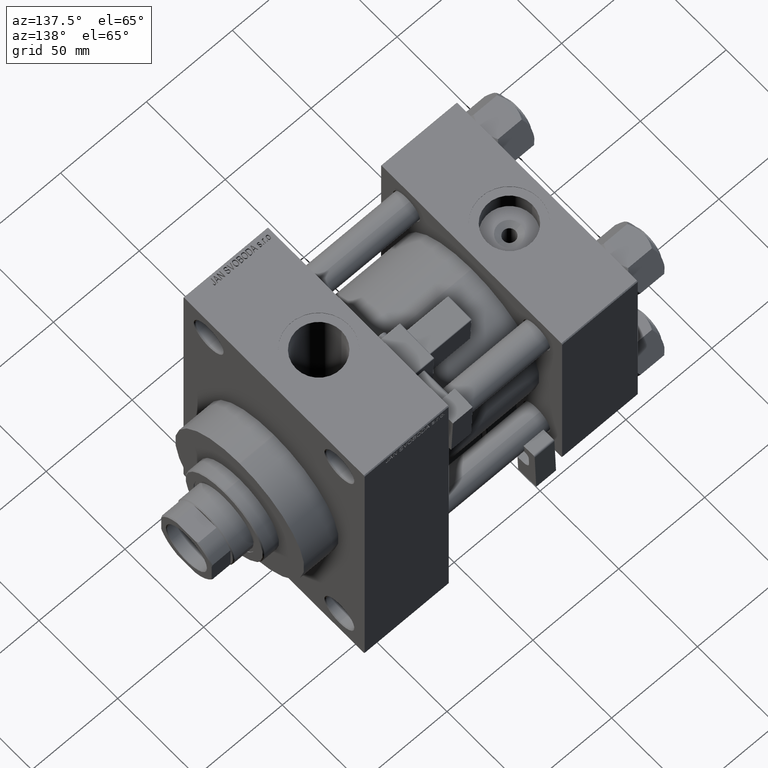
[diagram: clean part render]
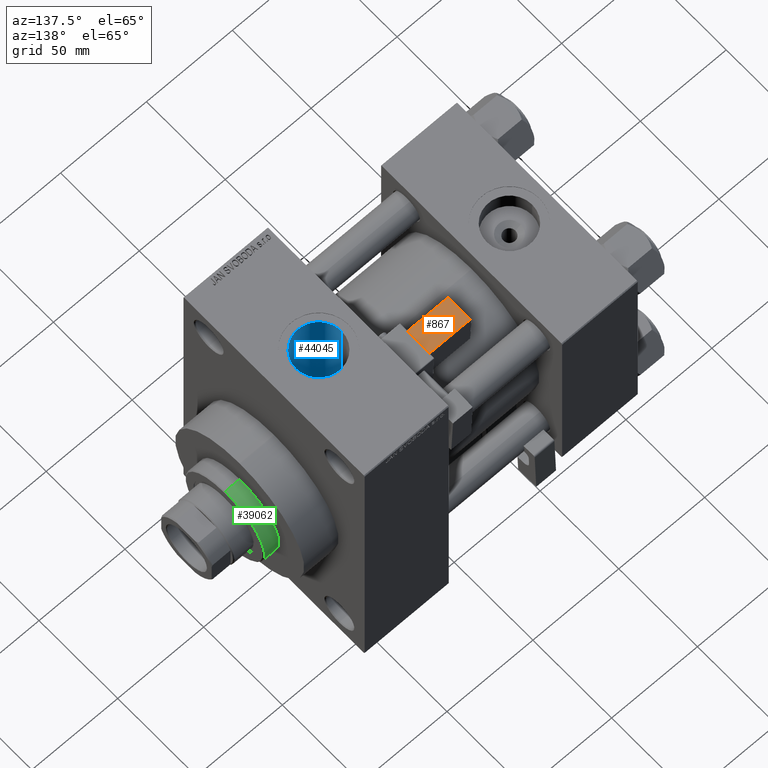
[diagram: same view with three faces highlighted in distinct colors, each labeled with its STEP entity id]
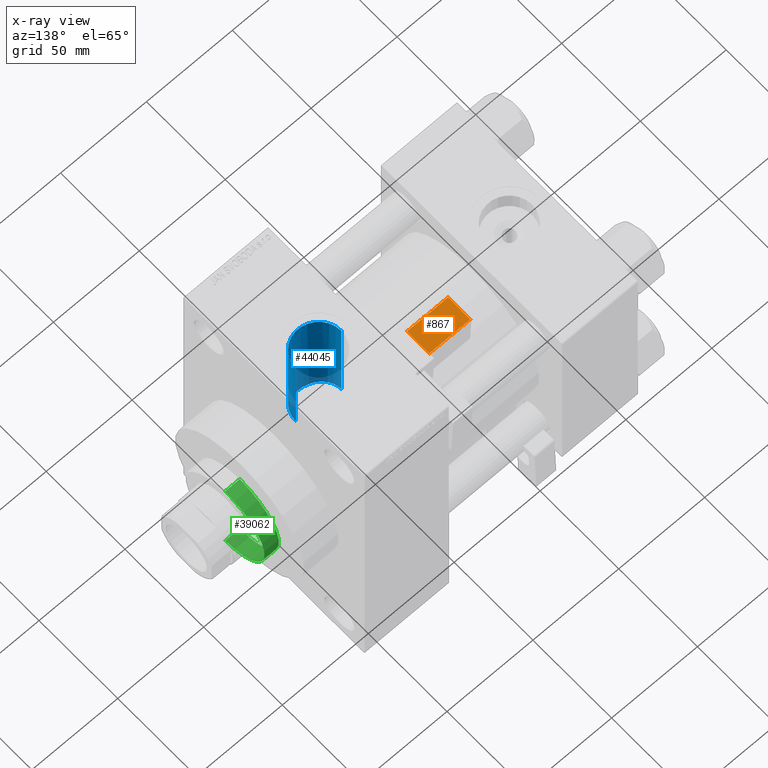
[diagram: x-ray of the same camera — body ghosted, the three highlighted faces saturated]
A machine part, auxiliary view with three faces highlighted in distinct colors.
The next image is the same camera in x-ray (body ghosted, the three faces saturated) — at least one of them is partly hidden behind the body in this view.
Their STEP definitions:

[orange] entity #867 — the highlighted planar face has unit normal (0, -0.0353, -0.9994).
#233 = CARTESIAN_POINT ( 'NONE',  ( 33.25000000000000000, -25.75000000000000355, 2.000000000000003109 ) ) ;
#313 = EDGE_CURVE ( 'NONE', #37155, #23625, #27436, .T. ) ;
#432 = EDGE_CURVE ( 'NONE', #15205, #633, #10047, .T. ) ;
#633 = VERTEX_POINT ( 'NONE', #5715 ) ;
#867 = ADVANCED_FACE ( 'NONE', ( #15763 ), #46268, .F. ) ;
#1204 = LINE ( 'NONE', #8516, #35206 ) ;
#2853 = DIRECTION ( 'NONE',  ( 1.000000000000000000, -0.000000000000000000, 1.334402673828313339E-16 ) ) ;
#3414 = DIRECTION ( 'NONE',  ( 1.000000000000000000, 0.000000000000000000, 1.334402673828313339E-16 ) ) ;
#5715 = CARTESIAN_POINT ( 'NONE',  ( 9.250000000000005329, -39.75000000000000000, 1.999999999999998224 ) ) ;
#8299 = VECTOR ( 'NONE', #2853, 1000.000000000000000 ) ;
#8516 = CARTESIAN_POINT ( 'NONE',  ( 9.250000000000005329, -25.25000000000000000, 2.000000000000000000 ) ) ;
#10047 = LINE ( 'NONE', #10788, #17942 ) ;
#10788 = CARTESIAN_POINT ( 'NONE',  ( 33.75000000000000000, -39.75000000000000000, 2.000000000000001332 ) ) ;
#15205 = VERTEX_POINT ( 'NONE', #48426 ) ;
#15763 = FACE_OUTER_BOUND ( 'NONE', #37600, .T. ) ;
#17942 = VECTOR ( 'NONE', #41052, 1000.000000000000000 ) ;
#18717 = CARTESIAN_POINT ( 'NONE',  ( 33.75000000000000000, -25.75000000000000355, 2.000000000000003109 ) ) ;
#23625 = VERTEX_POINT ( 'NONE', #233 ) ;
#24873 = EDGE_CURVE ( 'NONE', #23625, #15205, #30196, .T. ) ;
#27404 = ORIENTED_EDGE ( 'NONE', *, *, #24873, .T. ) ;
#27436 = LINE ( 'NONE', #18717, #8299 ) ;
#29516 = ORIENTED_EDGE ( 'NONE', *, *, #432, .T. ) ;
#29891 = EDGE_CURVE ( 'NONE', #633, #37155, #1204, .T. ) ;
#30196 = LINE ( 'NONE', #41319, #41483 ) ;
#34911 = CARTESIAN_POINT ( 'NONE',  ( 33.75000000000000000, -25.25000000000000000, 2.000000000000003109 ) ) ;
#35206 = VECTOR ( 'NONE', #36475, 1000.000000000000000 ) ;
#36475 = DIRECTION ( 'NONE',  ( -1.543213096464132036E-32, 1.000000000000000000, 1.156482317317871725E-16 ) ) ;
#37155 = VERTEX_POINT ( 'NONE', #46412 ) ;
#37600 = EDGE_LOOP ( 'NONE', ( #27404, #29516, #47689, #48743 ) ) ;
#41052 = DIRECTION ( 'NONE',  ( -1.000000000000000000, 0.000000000000000000, -1.334402673828313339E-16 ) ) ;
#41319 = CARTESIAN_POINT ( 'NONE',  ( 33.25000000000000000, -40.25000000000000000, 2.000000000000001332 ) ) ;
#41347 = AXIS2_PLACEMENT_3D ( 'NONE', #34911, #42477, #3414 ) ;
#41483 = VECTOR ( 'NONE', #48890, 1000.000000000000000 ) ;
#42477 = DIRECTION ( 'NONE',  ( -1.334402673828313339E-16, -1.156482317317871725E-16, 1.000000000000000000 ) ) ;
#46268 = PLANE ( 'NONE',  #41347 ) ;
#46412 = CARTESIAN_POINT ( 'NONE',  ( 9.250000000000005329, -25.75000000000000355, 1.999999999999999556 ) ) ;
#47689 = ORIENTED_EDGE ( 'NONE', *, *, #29891, .T. ) ;
#48426 = CARTESIAN_POINT ( 'NONE',  ( 33.25000000000000000, -39.75000000000000000, 2.000000000000001332 ) ) ;
#48743 = ORIENTED_EDGE ( 'NONE', *, *, #313, .T. ) ;
#48890 = DIRECTION ( 'NONE',  ( 5.473822126268816683E-48, -1.000000000000000000, -1.156482317317871725E-16 ) ) ;

[blue] entity #44045 — the highlighted cylindrical surface (edge-blend (fillet) strip) has radius 13.22 mm, axis along (0, 0, -1).
#123 = ORIENTED_EDGE ( 'NONE', *, *, #14334, .F. ) ;
#148 = CARTESIAN_POINT ( 'NONE',  ( 128.9108056136110463, -12.58132053668447980, 27.78479549450236519 ) ) ;
#402 = CARTESIAN_POINT ( 'NONE',  ( 134.7728848785530715, -13.13782983916530078, 27.52632580529387241 ) ) ;
#651 = CARTESIAN_POINT ( 'NONE',  ( 130.8194127222318741, -13.04835861710616030, 27.56801161413727641 ) ) ;
#1079 = CARTESIAN_POINT ( 'NONE',  ( 142.2683236211794053, -9.456123306897666225, 34.73961675537524485 ) ) ;
#1328 = CARTESIAN_POINT ( 'NONE',  ( 144.1369082302657887, -7.132913908065001252, 35.28770313236165634 ) ) ;
#1824 = AXIS2_PLACEMENT_3D ( 'NONE', #8343, #39340, #12870 ) ;
#2255 = ORIENTED_EDGE ( 'NONE', *, *, #36978, .T. ) ;
#3069 = CARTESIAN_POINT ( 'NONE',  ( 135.7400000000000091, -12.93293470176048920, 112.7999999999999829 ) ) ;
#3924 = CARTESIAN_POINT ( 'NONE',  ( 132.3058823230128382, -13.21107762266989738, 27.49031640659328346 ) ) ;
#4049 = ORIENTED_EDGE ( 'NONE', *, *, #21808, .F. ) ;
#4174 = CARTESIAN_POINT ( 'NONE',  ( 120.0571384771800325, -2.704130925345935132, 30.38086169036233741 ) ) ;
#4605 = CARTESIAN_POINT ( 'NONE',  ( 141.1396695021039136, -10.42376285600500552, 34.45866136291866155 ) ) ;
#4854 = CARTESIAN_POINT ( 'NONE',  ( 145.1948937127548049, -5.159834589306234953, 35.63551938799943741 ) ) ;
#4928 = CARTESIAN_POINT ( 'NONE',  ( 123.2203172874389878, -8.947551960444558361, 29.16865783815234536 ) ) ;
#5114 = CARTESIAN_POINT ( 'NONE',  ( 136.4827252521805008, -12.75862568112616025, 33.66350131574142068 ) ) ;
#7853 = DIRECTION ( 'NONE',  ( -0.000000000000000000, -0.000000000000000000, 1.000000000000000000 ) ) ;
#7968 = CARTESIAN_POINT ( 'NONE',  ( 121.2888049357342339, -6.152518877594249425, 29.87635194004261407 ) ) ;
#8046 = CARTESIAN_POINT ( 'NONE',  ( 119.7800000000000011, -1.086087741481131350E-14, 112.7999999999999829 ) ) ;
#8266 = EDGE_CURVE ( 'NONE', #38528, #37515, #22232, .T. ) ;
#8343 = CARTESIAN_POINT ( 'NONE',  ( 133.0000000000000000, -1.086087741481131350E-14, 112.7999999999999829 ) ) ;
#8397 = CARTESIAN_POINT ( 'NONE',  ( 143.4891427515922260, -8.055144359843698254, 35.08850325643998502 ) ) ;
#8739 = ORIENTED_EDGE ( 'NONE', *, *, #45708, .T. ) ;
#8892 = CARTESIAN_POINT ( 'NONE',  ( 138.6039743856111386, -11.99680468088063812, 33.94354112271071955 ) ) ;
#10142 = CARTESIAN_POINT ( 'NONE',  ( 119.8904211679684551, -1.722922135315099190, 30.45229114395320735 ) ) ;
#10262 = B_SPLINE_CURVE_WITH_KNOTS ( 'NONE', 3,
 ( #12497, #402, #12000, #3924, #35184, #651, #19301, #16029, #148, #31388, #23819, #39462, #38712, #39215, #4928, #30890, #27347, #27102, #7968, #23326, #19545, #4174, #34934, #35936, #10142, #44682, #10392, #10632 ),
 .UNSPECIFIED., .F., .F.,
 ( 4, 2, 2, 2, 2, 2, 2, 2, 2, 2, 2, 2, 2, 4 ),
 ( 0.01817501853417220065, 0.02113533814074457923, 0.02261549794403076852, 0.02409565774731695781, 0.02557581755060314363, 0.02705597735388933639, 0.03001629696046170803, 0.03297661656703407967, 0.03445677637032025509, 0.03593693617360642356, 0.03889725578017878826, 0.03963733568182188638, 0.04037741558346498449, 0.04185757538675117378 ),
 .UNSPECIFIED. ) ;
#10392 = CARTESIAN_POINT ( 'NONE',  ( 119.7800000000000153, -0.4934884814115302332, 30.50000000000000355 ) ) ;
#10632 = CARTESIAN_POINT ( 'NONE',  ( 119.7800000000000011, 3.735152335644797090E-15, 30.50000000000000000 ) ) ;
#10778 = CIRCLE ( 'NONE', #32471, 13.22000000000000952 ) ;
#11260 = CARTESIAN_POINT ( 'NONE',  ( 135.7400000000000091, -12.93293470176049098, 27.62225914004861593 ) ) ;
#11974 = VERTEX_POINT ( 'NONE', #13246 ) ;
#12000 = CARTESIAN_POINT ( 'NONE',  ( 133.7935798839907022, -13.23338642126744524, 27.47958799132000252 ) ) ;
#12497 = CARTESIAN_POINT ( 'NONE',  ( 135.7400000000000091, -12.93293470176049098, 27.62225914004861593 ) ) ;
#12676 = CARTESIAN_POINT ( 'NONE',  ( 139.2689392453522430, -11.66300537238692314, 34.06086853725207675 ) ) ;
#12870 = DIRECTION ( 'NONE',  ( -1.000000000000000000, 0.000000000000000000, 0.000000000000000000 ) ) ;
#13246 = CARTESIAN_POINT ( 'NONE',  ( 119.7800000000000011, -1.086087741481131350E-14, 89.79999999999998295 ) ) ;
#13783 = VECTOR ( 'NONE', #41513, 1000.000000000000000 ) ;
#14307 = CARTESIAN_POINT ( 'NONE',  ( 146.2200000000000273, -9.241894346338509984E-15, 112.7999999999999829 ) ) ;
#14320 = VECTOR ( 'NONE', #49662, 1000.000000000000000 ) ;
#14334 = EDGE_CURVE ( 'NONE', #11974, #17012, #34277, .T. ) ;
#15961 = CARTESIAN_POINT ( 'NONE',  ( 143.7144084780975959, -7.753104972441714260, 35.15664683191293705 ) ) ;
#16029 = CARTESIAN_POINT ( 'NONE',  ( 129.3806226936400776, -12.72437874985378947, 27.71924882183590810 ) ) ;
#16458 = CARTESIAN_POINT ( 'NONE',  ( 140.5356348427428941, -10.86845247487193866, 34.32099817610178860 ) ) ;
#17012 = VERTEX_POINT ( 'NONE', #43557 ) ;
#17931 = CARTESIAN_POINT ( 'NONE',  ( 135.7400000000000091, -12.93293470176048920, 33.59671412504501831 ) ) ;
#19301 = CARTESIAN_POINT ( 'NONE',  ( 130.3349265898027909, -12.95789683450919760, 27.61085799903361959 ) ) ;
#19545 = CARTESIAN_POINT ( 'NONE',  ( 120.3336605936850816, -3.913778405700231833, 30.26347032903657919 ) ) ;
#19590 = ORIENTED_EDGE ( 'NONE', *, *, #36086, .T. ) ;
#19727 = CARTESIAN_POINT ( 'NONE',  ( 145.6891278366016707, -3.727918262643101333, 35.80834393886974709 ) ) ;
#20227 = CARTESIAN_POINT ( 'NONE',  ( 144.3340033522583497, -6.815280192024313344, 35.35054759480853903 ) ) ;
#21808 = EDGE_CURVE ( 'NONE', #29383, #11974, #10778, .T. ) ;
#21821 = EDGE_LOOP ( 'NONE', ( #4049, #8739, #19590, #40289, #2255, #123 ) ) ;
#22232 = LINE ( 'NONE', #3069, #43045 ) ;
#23326 = CARTESIAN_POINT ( 'NONE',  ( 120.6573864625835313, -4.834977203227584397, 30.12760479331261720 ) ) ;
#23499 = CARTESIAN_POINT ( 'NONE',  ( 144.8836492013384145, -5.839896060611126316, 35.52932100949514904 ) ) ;
#23750 = CARTESIAN_POINT ( 'NONE',  ( 142.7829955645538007, -8.922873027715086280, 34.88174282732672538 ) ) ;
#23819 = CARTESIAN_POINT ( 'NONE',  ( 127.5318111534776477, -12.04594987798921579, 28.02143598411491254 ) ) ;
#24192 = FACE_OUTER_BOUND ( 'NONE', #21821, .T. ) ;
#24246 = CARTESIAN_POINT ( 'NONE',  ( 137.5622627804116576, -12.41346128962093331, 33.79242230791055590 ) ) ;
#25491 = CARTESIAN_POINT ( 'NONE',  ( 136.1130436000879058, -12.85390086390297171, 33.62713791769439808 ) ) ;
#27102 = CARTESIAN_POINT ( 'NONE',  ( 121.5247582497704855, -6.582345398711117568, 29.78430981770568664 ) ) ;
#27224 = CYLINDRICAL_SURFACE ( 'NONE', #1824, 13.22000000000000952 ) ;
#27274 = CARTESIAN_POINT ( 'NONE',  ( 145.9615557504130550, -2.628343228240504370, 35.90584824798534669 ) ) ;
#27347 = CARTESIAN_POINT ( 'NONE',  ( 122.0434615026330221, -7.413683856886505552, 29.58833678893007146 ) ) ;
#29383 = VERTEX_POINT ( 'NONE', #35888 ) ;
#29480 = DIRECTION ( 'NONE',  ( -0.000000000000000000, -0.000000000000000000, -1.000000000000000000 ) ) ;
#29968 = DIRECTION ( 'NONE',  ( 1.000000000000000000, 0.000000000000000000, 0.000000000000000000 ) ) ;
#30890 = CARTESIAN_POINT ( 'NONE',  ( 122.3230183722455138, -7.810479071823803743, 29.48561069758634190 ) ) ;
#31388 = CARTESIAN_POINT ( 'NONE',  ( 127.9856869291995451, -12.24205054737453580, 27.93593895886880318 ) ) ;
#32471 = AXIS2_PLACEMENT_3D ( 'NONE', #36810, #29480, #29968 ) ;
#33720 = VERTEX_POINT ( 'NONE', #34188 ) ;
#34188 = CARTESIAN_POINT ( 'NONE',  ( 146.2200000000000273, 4.408731805096607676E-15, 36.00000000000000000 ) ) ;
#34277 = LINE ( 'NONE', #8046, #14320 ) ;
#34934 = CARTESIAN_POINT ( 'NONE',  ( 120.0082494278151160, -2.458584717718188983, 30.40173955536769412 ) ) ;
#35184 = CARTESIAN_POINT ( 'NONE',  ( 131.8037034507516125, -13.17510903343229600, 27.50766127672410022 ) ) ;
#35358 = CARTESIAN_POINT ( 'NONE',  ( 140.2234778375481312, -11.07831175427974379, 34.25365854375355212 ) ) ;
#35888 = CARTESIAN_POINT ( 'NONE',  ( 146.2200000000000273, -9.241894346338509984E-15, 89.79999999999998295 ) ) ;
#35936 = CARTESIAN_POINT ( 'NONE',  ( 119.9249887712033882, -1.968324950537289952, 30.43741289426054308 ) ) ;
#35997 = CARTESIAN_POINT ( 'NONE',  ( 135.7400000000000091, -12.93293470176048920, 33.59671412504501831 ) ) ;
#36086 = EDGE_CURVE ( 'NONE', #33720, #37515, #39187, .T. ) ;
#36810 = CARTESIAN_POINT ( 'NONE',  ( 133.0000000000000000, -1.086087741481131350E-14, 89.79999999999998295 ) ) ;
#36978 = EDGE_CURVE ( 'NONE', #38528, #17012, #10262, .T. ) ;
#37515 = VERTEX_POINT ( 'NONE', #35997 ) ;
#38528 = VERTEX_POINT ( 'NONE', #11260 ) ;
#38712 = CARTESIAN_POINT ( 'NONE',  ( 125.4103075940778353, -10.86814745508434044, 28.50545567885846410 ) ) ;
#38888 = CARTESIAN_POINT ( 'NONE',  ( 146.2200000000000273, -0.7632647160769636674, 36.00000000000000000 ) ) ;
#39142 = CARTESIAN_POINT ( 'NONE',  ( 141.4301524439943023, -10.19013505585470192, 34.52862519156883536 ) ) ;
#39187 = B_SPLINE_CURVE_WITH_KNOTS ( 'NONE', 3,
 ( #42920, #38888, #39389, #27274, #42669, #19727, #46964, #4854, #23499, #20227, #1328, #15961, #8397, #23750, #1079, #39142, #4605, #16458, #35358, #12676, #8892, #24246, #39639, #5114, #25491, #17931 ),
 .UNSPECIFIED., .F., .F.,
 ( 4, 2, 2, 2, 2, 2, 2, 2, 2, 2, 2, 2, 4 ),
 ( 0.01810032772820883984, 0.02036086973656282134, 0.02149114074073981903, 0.02262141174491681672, 0.02488195375327078782, 0.02601222475744779244, 0.02714249576162479360, 0.02940303776997874735, 0.03053330877415569300, 0.03166357977833263865, 0.03392412178668652301, 0.03505439279086347559, 0.03618466379504041430 ),
 .UNSPECIFIED. ) ;
#39215 = CARTESIAN_POINT ( 'NONE',  ( 123.8972371638811865, -9.636377362439814576, 28.94508358760566225 ) ) ;
#39340 = DIRECTION ( 'NONE',  ( 0.000000000000000000, 0.000000000000000000, -1.000000000000000000 ) ) ;
#39389 = CARTESIAN_POINT ( 'NONE',  ( 146.1544019816762443, -1.515576091947735238, 35.97576316411752373 ) ) ;
#39462 = CARTESIAN_POINT ( 'NONE',  ( 126.2234386244904272, -11.39284893347530669, 28.29622104590160347 ) ) ;
#39639 = CARTESIAN_POINT ( 'NONE',  ( 137.2076088460675294, -12.53825874082049552, 33.74619856893892234 ) ) ;
#40289 = ORIENTED_EDGE ( 'NONE', *, *, #8266, .F. ) ;
#41513 = DIRECTION ( 'NONE',  ( 0.000000000000000000, 0.000000000000000000, -1.000000000000000000 ) ) ;
#42669 = CARTESIAN_POINT ( 'NONE',  ( 145.8814408249625956, -2.996635129533369302, 35.87694312671834496 ) ) ;
#42920 = CARTESIAN_POINT ( 'NONE',  ( 146.2200000000000273, 4.408731805096607676E-15, 36.00000000000000000 ) ) ;
#43045 = VECTOR ( 'NONE', #7853, 1000.000000000000000 ) ;
#43557 = CARTESIAN_POINT ( 'NONE',  ( 119.7800000000000011, 3.735152335644797090E-15, 30.50000000000000000 ) ) ;
#44045 = ADVANCED_FACE ( 'NONE', ( #24192 ), #27224, .F. ) ;
#44682 = CARTESIAN_POINT ( 'NONE',  ( 119.8075453442667424, -0.9859064391995653320, 30.48803002647009919 ) ) ;
#45708 = EDGE_CURVE ( 'NONE', #29383, #33720, #49081, .T. ) ;
#46964 = CARTESIAN_POINT ( 'NONE',  ( 145.5762609626179938, -4.092528755394254425, 35.76841822259746095 ) ) ;
#49081 = LINE ( 'NONE', #14307, #13783 ) ;
#49662 = DIRECTION ( 'NONE',  ( 0.000000000000000000, 0.000000000000000000, -1.000000000000000000 ) ) ;

[green] entity #39062 — the highlighted cylindrical surface (partial cylindrical patch) has radius 25 mm, axis along (-1, 0, 0).
#1924 = ORIENTED_EDGE ( 'NONE', *, *, #6998, .T. ) ;
#2352 = CARTESIAN_POINT ( 'NONE',  ( 25.00000000000000000, 3.061616997868383043E-15, 51.75999999999996959 ) ) ;
#4076 = VERTEX_POINT ( 'NONE', #27921 ) ;
#4263 = CARTESIAN_POINT ( 'NONE',  ( 0.000000000000000000, 0.000000000000000000, 52.25999999999999801 ) ) ;
#4405 = AXIS2_PLACEMENT_3D ( 'NONE', #8255, #34237, #38755 ) ;
#6998 = EDGE_CURVE ( 'NONE', #4076, #24285, #49474, .T. ) ;
#8247 = CARTESIAN_POINT ( 'NONE',  ( -25.00000000000000000, 0.000000000000000000, 52.25999999999999801 ) ) ;
#8255 = CARTESIAN_POINT ( 'NONE',  ( 0.000000000000000000, 0.000000000000000000, 43.25999999999999801 ) ) ;
#11835 = DIRECTION ( 'NONE',  ( -0.000000000000000000, -0.000000000000000000, -1.000000000000000000 ) ) ;
#12938 = DIRECTION ( 'NONE',  ( 1.000000000000000000, 0.000000000000000000, 0.000000000000000000 ) ) ;
#14248 = VECTOR ( 'NONE', #42030, 1000.000000000000000 ) ;
#15892 = VECTOR ( 'NONE', #46425, 1000.000000000000000 ) ;
#16214 = CARTESIAN_POINT ( 'NONE',  ( 0.000000000000000000, 0.000000000000000000, 51.75999999999996959 ) ) ;
#17927 = ORIENTED_EDGE ( 'NONE', *, *, #35143, .T. ) ;
#20017 = CIRCLE ( 'NONE', #42539, 25.00000000000000000 ) ;
#22134 = LINE ( 'NONE', #8247, #14248 ) ;
#24285 = VERTEX_POINT ( 'NONE', #38459 ) ;
#25608 = CARTESIAN_POINT ( 'NONE',  ( -25.00000000000000000, 0.000000000000000000, 51.75999999999996959 ) ) ;
#27921 = CARTESIAN_POINT ( 'NONE',  ( -25.00000000000000000, 0.000000000000000000, 43.25999999999999801 ) ) ;
#29553 = EDGE_CURVE ( 'NONE', #42084, #24285, #45683, .T. ) ;
#31223 = CYLINDRICAL_SURFACE ( 'NONE', #49896, 25.00000000000000000 ) ;
#31579 = DIRECTION ( 'NONE',  ( 0.000000000000000000, 0.000000000000000000, -1.000000000000000000 ) ) ;
#31752 = EDGE_CURVE ( 'NONE', #42419, #4076, #22134, .T. ) ;
#34237 = DIRECTION ( 'NONE',  ( 0.000000000000000000, 0.000000000000000000, 1.000000000000000000 ) ) ;
#34283 = FACE_OUTER_BOUND ( 'NONE', #34720, .T. ) ;
#34720 = EDGE_LOOP ( 'NONE', ( #44058, #17927, #36174, #1924 ) ) ;
#35143 = EDGE_CURVE ( 'NONE', #42084, #42419, #20017, .T. ) ;
#36174 = ORIENTED_EDGE ( 'NONE', *, *, #31752, .T. ) ;
#37870 = CARTESIAN_POINT ( 'NONE',  ( 25.00000000000000000, 3.061616997868383043E-15, 52.25999999999999801 ) ) ;
#38459 = CARTESIAN_POINT ( 'NONE',  ( 25.00000000000000000, 3.061616997868383043E-15, 43.25999999999999801 ) ) ;
#38755 = DIRECTION ( 'NONE',  ( 1.000000000000000000, 0.000000000000000000, 0.000000000000000000 ) ) ;
#39062 = ADVANCED_FACE ( 'NONE', ( #34283 ), #31223, .T. ) ;
#42030 = DIRECTION ( 'NONE',  ( -0.000000000000000000, -0.000000000000000000, -1.000000000000000000 ) ) ;
#42084 = VERTEX_POINT ( 'NONE', #2352 ) ;
#42337 = DIRECTION ( 'NONE',  ( -1.000000000000000000, 0.000000000000000000, 0.000000000000000000 ) ) ;
#42419 = VERTEX_POINT ( 'NONE', #25608 ) ;
#42539 = AXIS2_PLACEMENT_3D ( 'NONE', #16214, #31579, #12938 ) ;
#44058 = ORIENTED_EDGE ( 'NONE', *, *, #29553, .F. ) ;
#45683 = LINE ( 'NONE', #37870, #15892 ) ;
#46425 = DIRECTION ( 'NONE',  ( -0.000000000000000000, -0.000000000000000000, -1.000000000000000000 ) ) ;
#49474 = CIRCLE ( 'NONE', #4405, 25.00000000000000000 ) ;
#49896 = AXIS2_PLACEMENT_3D ( 'NONE', #4263, #11835, #42337 ) ;